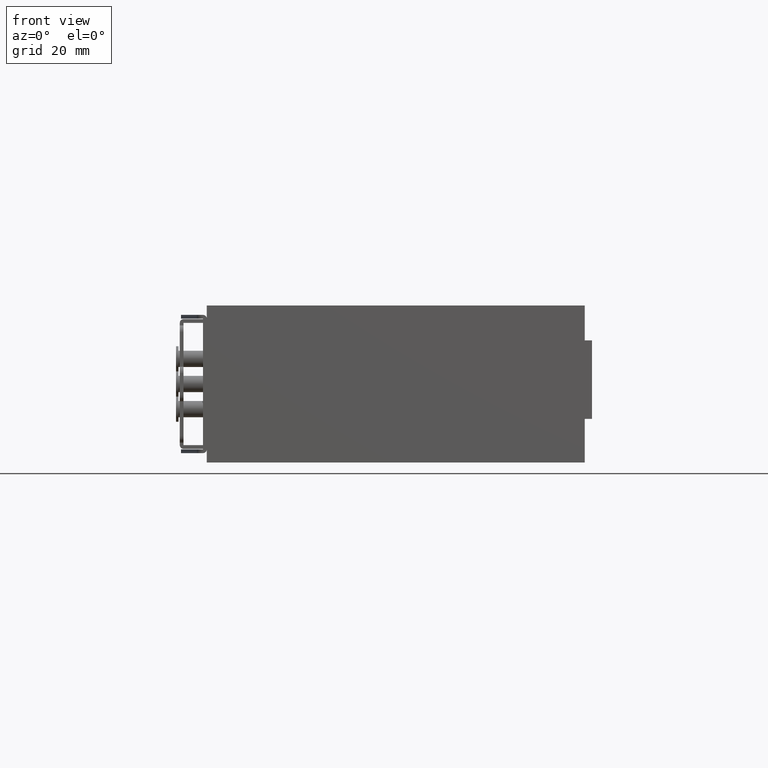
[diagram: clean part render]
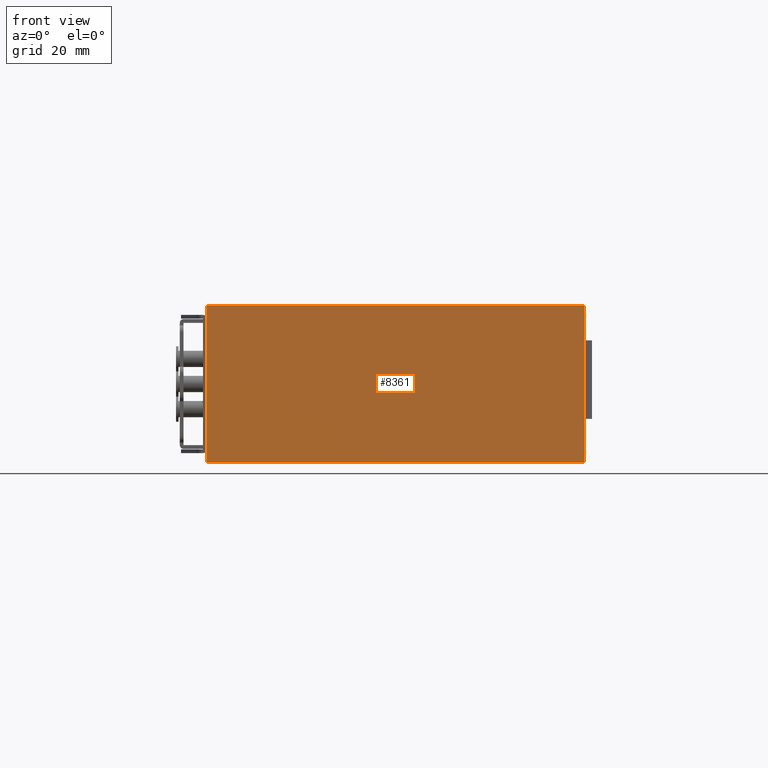
[diagram: same view with one face highlighted and labeled with its STEP entity id]
A machine part, front view. The second image highlights one B-rep face of the part: STEP entity #8361.
In plain terms, the highlighted planar face has unit normal (0, 1, 0).
Its self-contained STEP definition (entity closure, byte-faithful):
#247 = EDGE_CURVE ( 'NONE', #1186, #13883, #3585, .T. ) ;
#1186 = VERTEX_POINT ( 'NONE', #16089 ) ;
#1322 = EDGE_CURVE ( 'NONE', #3790, #13883, #15451, .T. ) ;
#1429 = EDGE_CURVE ( 'NONE', #7289, #3790, #14412, .T. ) ;
#1942 = VECTOR ( 'NONE', #15376, 39.37007874015748143 ) ;
#3431 = DIRECTION ( 'NONE',  ( -0.000000000000000000, 0.000000000000000000, -1.000000000000000000 ) ) ;
#3472 = CARTESIAN_POINT ( 'NONE',  ( 0.1181102362204724532, 0.000000000000000000, 0.000000000000000000 ) ) ;
#3585 = LINE ( 'NONE', #4825, #13726 ) ;
#3790 = VERTEX_POINT ( 'NONE', #11807 ) ;
#4825 = CARTESIAN_POINT ( 'NONE',  ( 4.854330708661417582, 0.000000000000000000, 0.000000000000000000 ) ) ;
#5103 = ORIENTED_EDGE ( 'NONE', *, *, #15802, .F. ) ;
#5136 = ORIENTED_EDGE ( 'NONE', *, *, #247, .F. ) ;
#6177 = CARTESIAN_POINT ( 'NONE',  ( 0.1181102362204725087, 0.000000000000000000, 0.000000000000000000 ) ) ;
#6376 = CARTESIAN_POINT ( 'NONE',  ( 4.854330708661417582, 0.000000000000000000, 1.968503937007874072 ) ) ;
#7289 = VERTEX_POINT ( 'NONE', #8968 ) ;
#7339 = CARTESIAN_POINT ( 'NONE',  ( 4.854330708661417582, 0.000000000000000000, 1.968503937007874072 ) ) ;
#8361 = ADVANCED_FACE ( 'NONE', ( #11533 ), #10223, .F. ) ;
#8655 = DIRECTION ( 'NONE',  ( 0.000000000000000000, 1.000000000000000000, 0.000000000000000000 ) ) ;
#8910 = DIRECTION ( 'NONE',  ( -1.000000000000000000, 0.000000000000000000, -0.000000000000000000 ) ) ;
#8968 = CARTESIAN_POINT ( 'NONE',  ( 4.854330708661417582, 0.000000000000000000, 1.968503937007874072 ) ) ;
#10095 = CARTESIAN_POINT ( 'NONE',  ( 4.854330708661417582, 0.000000000000000000, 1.968503937007874072 ) ) ;
#10223 = PLANE ( 'NONE',  #11327 ) ;
#11270 = ORIENTED_EDGE ( 'NONE', *, *, #1429, .T. ) ;
#11327 = AXIS2_PLACEMENT_3D ( 'NONE', #7339, #8655, #14244 ) ;
#11402 = LINE ( 'NONE', #10095, #13544 ) ;
#11533 = FACE_OUTER_BOUND ( 'NONE', #15410, .T. ) ;
#11807 = CARTESIAN_POINT ( 'NONE',  ( 0.1181102362204725087, 0.000000000000000000, 1.968503937007874072 ) ) ;
#12773 = DIRECTION ( 'NONE',  ( -1.000000000000000000, -0.000000000000000000, 0.000000000000000000 ) ) ;
#13544 = VECTOR ( 'NONE', #3431, 39.37007874015748143 ) ;
#13726 = VECTOR ( 'NONE', #12773, 39.37007874015748143 ) ;
#13883 = VERTEX_POINT ( 'NONE', #6177 ) ;
#14244 = DIRECTION ( 'NONE',  ( 0.000000000000000000, -0.000000000000000000, 1.000000000000000000 ) ) ;
#14412 = LINE ( 'NONE', #6376, #15074 ) ;
#15074 = VECTOR ( 'NONE', #8910, 39.37007874015748143 ) ;
#15376 = DIRECTION ( 'NONE',  ( 0.000000000000000000, 0.000000000000000000, -1.000000000000000000 ) ) ;
#15410 = EDGE_LOOP ( 'NONE', ( #5136, #5103, #11270, #16558 ) ) ;
#15451 = LINE ( 'NONE', #3472, #1942 ) ;
#15802 = EDGE_CURVE ( 'NONE', #7289, #1186, #11402, .T. ) ;
#16089 = CARTESIAN_POINT ( 'NONE',  ( 4.854330708661417582, 0.000000000000000000, 0.000000000000000000 ) ) ;
#16558 = ORIENTED_EDGE ( 'NONE', *, *, #1322, .T. ) ;